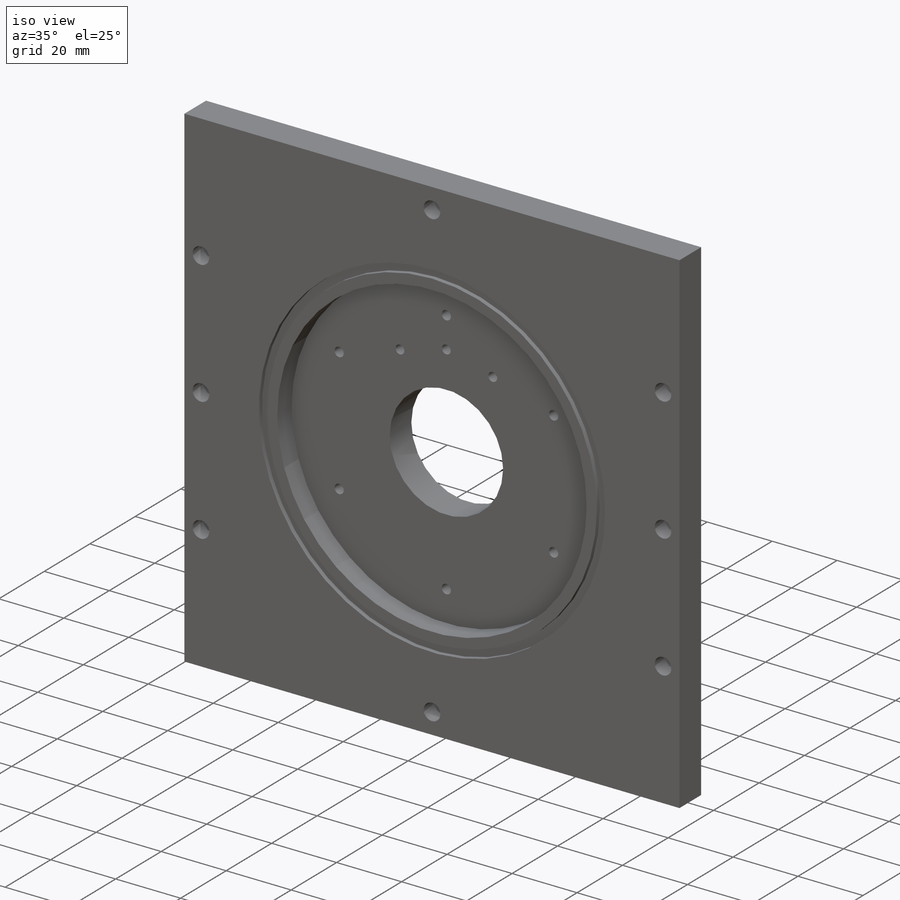
[diagram: iso view]
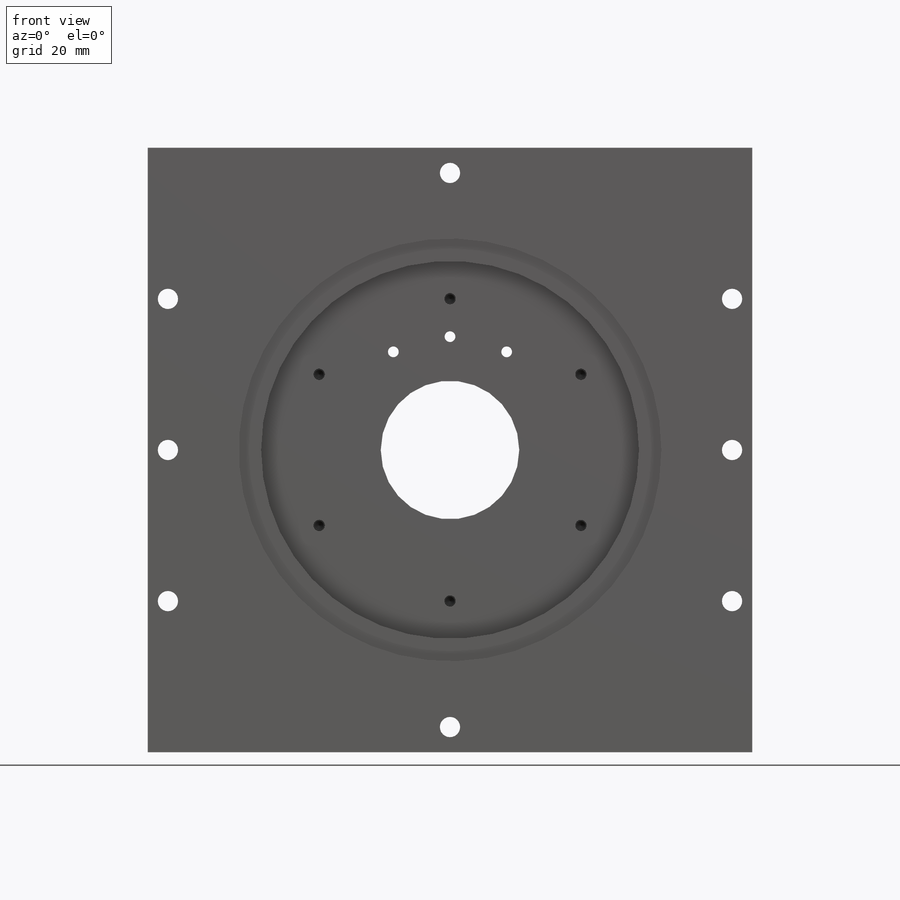
[diagram: front view]
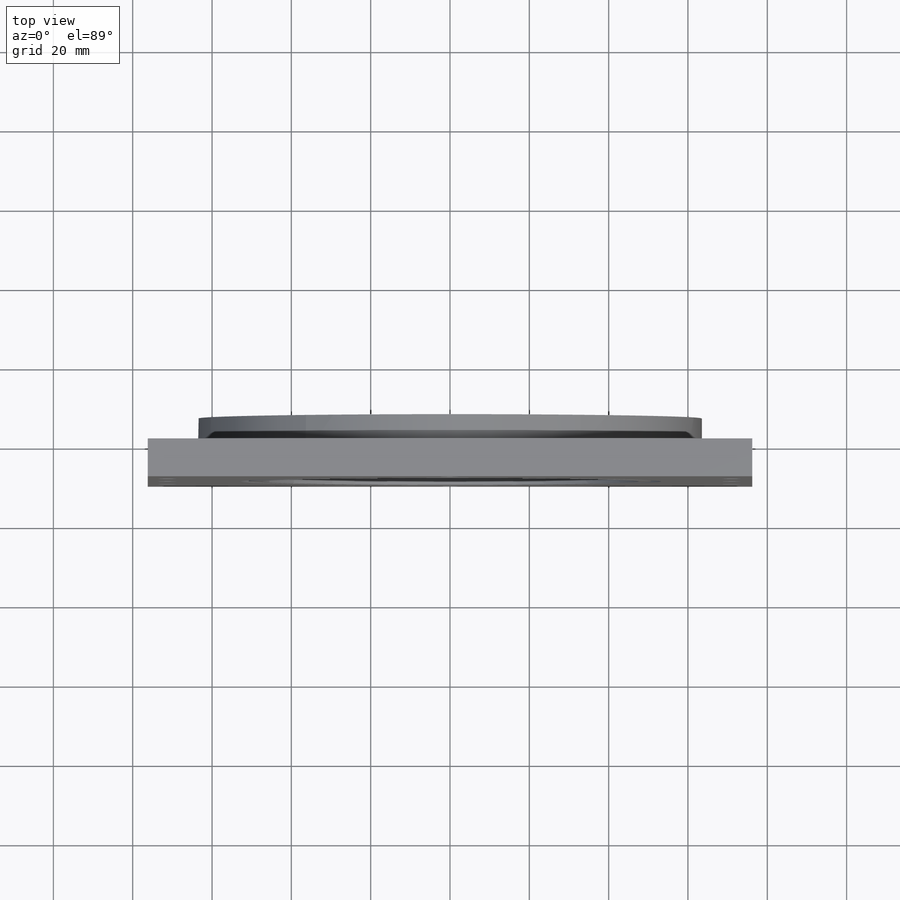
[diagram: top view]
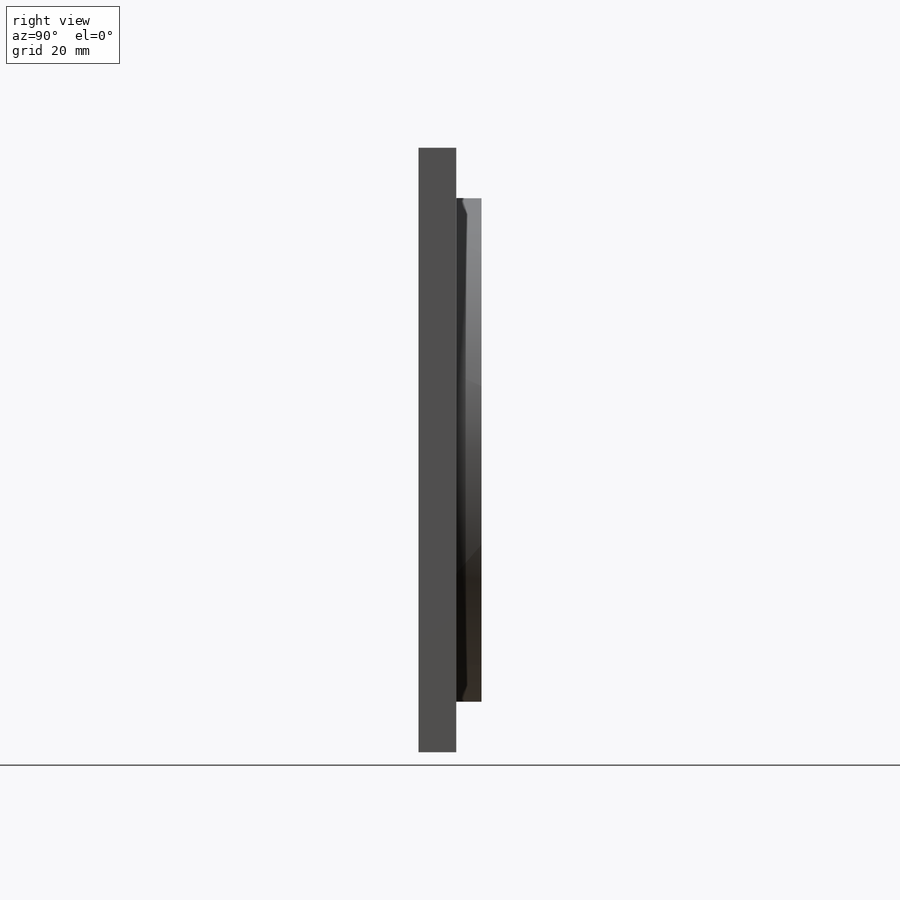
[diagram: right view]
SOLIDWORKS PART (.sldprt)
format: sldprt  version: not decoded by parser v0  size: 663,552 bytes
history: native  units: mm
features: sketch x15, cut_extrude x4, hole x3, pattern_circular x3, material x1, plane x1, extrude x1, revolve x1, thread x1 (+13 scaffold rows collapsed)
feature tree (43):
  scaffold x13  (default folders/planes/origin — collapsed)
  material  "Material <not specified>"
  plane  "Plane1"
  sketch  "Sketch1"
  extrude  "Boss-Extrude1"  Depth=9.525mm
  sketch  "Sketch4"  dims[D1=6.35mm D2=63.5mm D3=0.0mm]
  revolve  "Revolve1"  Angle=360deg
  hole  "CBORE for #10 Socket Head Cap Screw1"  Diameter=5.1054mm Depth=9.525mm
  sketch  "Sketch7"
  sketch  "Sketch6"  dims[hole-wizard template sketch: 42 standard entries collapsed; hole parameters kept: c12.Thru Hole Depth=9.525mm c12.C'Bore Dia.=9.525mm c12.C'Bore Depth=4.826mm]
  sketch  "Sketch19"
  sketch  "Sketch21"
  sketch  "Sketch22"  dims[D1=95.25mm]
  cut_extrude  "Cut-Extrude3"  Depth=6.35mm
  sketch  "Sketch23"  dims[D1=106.553mm D2=2.54mm]
  cut_extrude  "Cut-Extrude4"  Depth=1.3462mm
  sketch  "Sketch24"  dims[D1=34.925mm]
  cut_extrude  "Cut-Extrude5"  Depth=25.4mm
  hole  "#4-40 Tapped Hole1"  Diameter=2.2606mm Depth=7.5946mm
  sketch  "Sketch26"  dims[D1=38.1mm]
  sketch  "Sketch25"  dims[hole-wizard template sketch: 29 standard entries collapsed; hole parameters kept: c8.Tap Drill Depth=7.5946mm c8.Thread Major Dia.=2.8448mm c8.Thread Depth=5.6896mm c8.D5=~14.816244mm c8.Drill Angle=118.0deg]
  pattern_circular  "CirPattern1"  Count=6 Angle=360deg
  sketch  "Sketch27"
  sketch  "Sketch28"  dims[D1=1.27mm D2=28.575mm]
  cut_extrude  "Cut-Extrude6"  [1 undecoded]
  hole  "#6-32 Tapped Hole1"  Diameter=2.7051mm Depth=9.525mm
  sketch  "Sketch30"
  sketch  "Sketch29"  dims[hole-wizard template sketch: 60 standard entries collapsed; hole parameters kept: c18.Thru Tap Drill Depth=9.525mm]
  thread  "Hole Thread1"  Diameter=3.5052mm  [1 undecoded]
  pattern_circular  "CirPattern2"  Count=2 Angle=30deg
  pattern_circular  "CirPattern3"  Count=2 Angle=30deg
decode coverage: 21 of 28 modeling features carry decoded parameters
note: ~ marks probable driven/reference dimensions
note: 2 parameter values undecoded
note: suppression state not decoded; provenance and decode notes live in map.json
